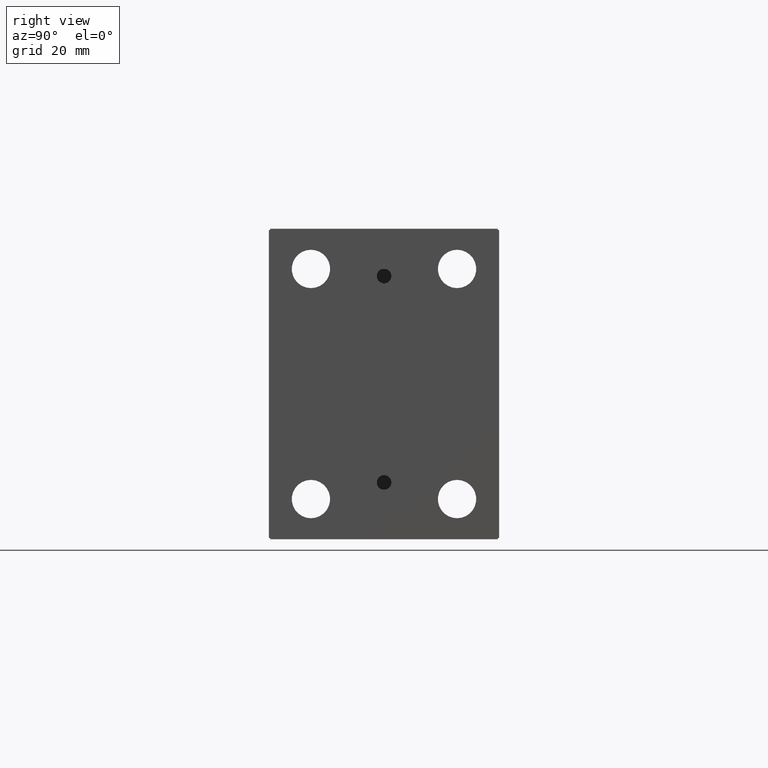
[diagram: clean part render]
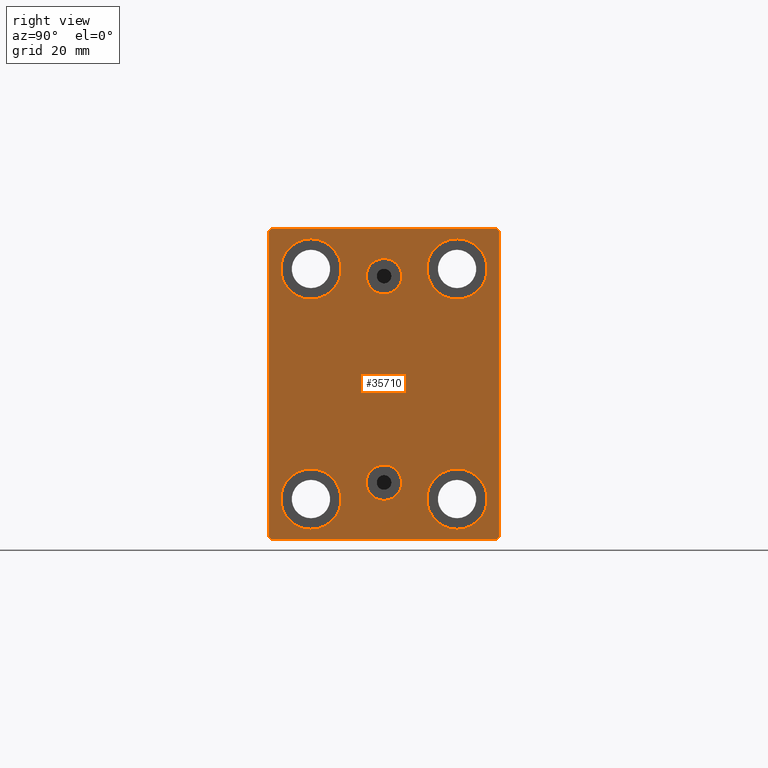
[diagram: same view with one face highlighted and labeled with its STEP entity id]
A machine part, right view. The second image highlights one B-rep face of the part: STEP entity #35710.
In plain terms, the highlighted planar face has unit normal (1, 0, 0).
Its self-contained STEP definition (entity closure, byte-faithful):
#89 = EDGE_LOOP ( 'NONE', ( #13865, #10913 ) ) ;
#205 = EDGE_CURVE ( 'NONE', #30146, #29244, #21344, .T. ) ;
#465 = ORIENTED_EDGE ( 'NONE', *, *, #20531, .F. ) ;
#588 = EDGE_CURVE ( 'NONE', #25107, #28019, #43537, .T. ) ;
#652 = VECTOR ( 'NONE', #19540, 1000.000000000000000 ) ;
#1775 = AXIS2_PLACEMENT_3D ( 'NONE', #41463, #13235, #45140 ) ;
#1930 = VERTEX_POINT ( 'NONE', #33197 ) ;
#2226 = DIRECTION ( 'NONE',  ( 0.000000000000000000, 0.000000000000000000, 1.000000000000000000 ) ) ;
#2328 = VERTEX_POINT ( 'NONE', #21862 ) ;
#3334 = CARTESIAN_POINT ( 'NONE',  ( 123.0000000000000000, 19.99999999999999645, -39.74999999999999289 ) ) ;
#3882 = DIRECTION ( 'NONE',  ( 0.000000000000000000, -0.7071067811865474617, -0.7071067811865474617 ) ) ;
#3933 = CARTESIAN_POINT ( 'NONE',  ( 123.0000000000000000, 20.00000000000000355, 31.50000000000000000 ) ) ;
#4055 = CARTESIAN_POINT ( 'NONE',  ( 123.0000000000000000, 0.000000000000000000, 0.000000000000000000 ) ) ;
#4302 = DIRECTION ( 'NONE',  ( 0.000000000000000000, 1.000000000000000000, 0.000000000000000000 ) ) ;
#4714 = AXIS2_PLACEMENT_3D ( 'NONE', #4055, #24952, #45162 ) ;
#4840 = ORIENTED_EDGE ( 'NONE', *, *, #9501, .T. ) ;
#4986 = AXIS2_PLACEMENT_3D ( 'NONE', #12368, #30493, #44731 ) ;
#5649 = VERTEX_POINT ( 'NONE', #24533 ) ;
#6112 = EDGE_CURVE ( 'NONE', #45364, #23648, #41803, .T. ) ;
#6165 = DIRECTION ( 'NONE',  ( -1.000000000000000000, -0.000000000000000000, -0.000000000000000000 ) ) ;
#6215 = CIRCLE ( 'NONE', #42130, 8.250000000000000000 ) ;
#6353 = VERTEX_POINT ( 'NONE', #37405 ) ;
#6516 = AXIS2_PLACEMENT_3D ( 'NONE', #16958, #6165, #30959 ) ;
#6595 = CARTESIAN_POINT ( 'NONE',  ( 123.0000000000000000, 19.99999999999999645, -31.49999999999999289 ) ) ;
#7075 = EDGE_CURVE ( 'NONE', #10674, #16423, #31305, .T. ) ;
#7143 = CIRCLE ( 'NONE', #29170, 8.249999999999992895 ) ;
#7336 = CIRCLE ( 'NONE', #10290, 8.249999999999992895 ) ;
#8166 = ORIENTED_EDGE ( 'NONE', *, *, #39740, .F. ) ;
#8636 = CIRCLE ( 'NONE', #40167, 8.249999999999992895 ) ;
#8640 = CARTESIAN_POINT ( 'NONE',  ( 123.0000000000000000, -31.50000000000000000, -42.50000000000000711 ) ) ;
#8839 = ORIENTED_EDGE ( 'NONE', *, *, #15064, .T. ) ;
#9134 = VERTEX_POINT ( 'NONE', #38042 ) ;
#9501 = EDGE_CURVE ( 'NONE', #2328, #5649, #7143, .T. ) ;
#9550 = DIRECTION ( 'NONE',  ( -1.000000000000000000, -0.000000000000000000, -0.000000000000000000 ) ) ;
#9697 = CARTESIAN_POINT ( 'NONE',  ( 123.0000000000000000, 20.00000000000000355, 31.50000000000000000 ) ) ;
#10157 = DIRECTION ( 'NONE',  ( -1.000000000000000000, -0.000000000000000000, -0.000000000000000000 ) ) ;
#10290 = AXIS2_PLACEMENT_3D ( 'NONE', #9697, #10157, #37712 ) ;
#10643 = VECTOR ( 'NONE', #19873, 1000.000000000000114 ) ;
#10674 = VERTEX_POINT ( 'NONE', #12682 ) ;
#10824 = CARTESIAN_POINT ( 'NONE',  ( 123.0000000000000000, 20.00000000000000355, 23.25000000000000355 ) ) ;
#10913 = ORIENTED_EDGE ( 'NONE', *, *, #14896, .F. ) ;
#11273 = DIRECTION ( 'NONE',  ( -1.000000000000000000, -0.000000000000000000, -0.000000000000000000 ) ) ;
#11286 = VECTOR ( 'NONE', #3882, 1000.000000000000114 ) ;
#11645 = LINE ( 'NONE', #8640, #44672 ) ;
#12368 = CARTESIAN_POINT ( 'NONE',  ( 123.0000000000000000, -3.571693674697836683E-15, 29.50000000000001066 ) ) ;
#12682 = CARTESIAN_POINT ( 'NONE',  ( 123.0000000000000000, -20.00000000000000355, -23.24999999999999289 ) ) ;
#12786 = CARTESIAN_POINT ( 'NONE',  ( 123.0000000000000000, -31.00000000000000000, 42.49999999999999289 ) ) ;
#13123 = DIRECTION ( 'NONE',  ( 0.000000000000000000, -1.632680918566406300E-16, 1.000000000000000000 ) ) ;
#13235 = DIRECTION ( 'NONE',  ( 1.000000000000000000, 0.000000000000000000, 0.000000000000000000 ) ) ;
#13346 = ORIENTED_EDGE ( 'NONE', *, *, #36653, .T. ) ;
#13738 = EDGE_LOOP ( 'NONE', ( #25732, #33025, #38927, #40318, #8839, #30584, #15057, #27808 ) ) ;
#13850 = CIRCLE ( 'NONE', #6516, 8.250000000000000000 ) ;
#13865 = ORIENTED_EDGE ( 'NONE', *, *, #37566, .F. ) ;
#14023 = CARTESIAN_POINT ( 'NONE',  ( 123.0000000000000000, 31.50000000000001421, -42.50000000000000711 ) ) ;
#14157 = FACE_BOUND ( 'NONE', #32499, .T. ) ;
#14483 = EDGE_CURVE ( 'NONE', #19395, #30146, #36987, .T. ) ;
#14896 = EDGE_CURVE ( 'NONE', #34017, #15071, #43092, .T. ) ;
#15046 = EDGE_LOOP ( 'NONE', ( #13346, #45279 ) ) ;
#15057 = ORIENTED_EDGE ( 'NONE', *, *, #6112, .T. ) ;
#15064 = EDGE_CURVE ( 'NONE', #34715, #35839, #11645, .T. ) ;
#15067 = CARTESIAN_POINT ( 'NONE',  ( 123.0000000000000000, 3.306546357697852550E-15, -26.99999999999998934 ) ) ;
#15071 = VERTEX_POINT ( 'NONE', #18085 ) ;
#15749 = DIRECTION ( 'NONE',  ( 1.000000000000000000, 0.000000000000000000, -0.000000000000000000 ) ) ;
#16423 = VERTEX_POINT ( 'NONE', #35715 ) ;
#16958 = CARTESIAN_POINT ( 'NONE',  ( 123.0000000000000000, 19.99999999999999645, -31.49999999999999289 ) ) ;
#17162 = FACE_BOUND ( 'NONE', #15046, .T. ) ;
#17579 = ORIENTED_EDGE ( 'NONE', *, *, #38695, .T. ) ;
#18085 = CARTESIAN_POINT ( 'NONE',  ( 123.0000000000000000, -3.571693674697836683E-15, 24.64000000000001123 ) ) ;
#18969 = CARTESIAN_POINT ( 'NONE',  ( 123.0000000000000000, 31.00000000000004263, -42.50000000000000711 ) ) ;
#19395 = VERTEX_POINT ( 'NONE', #26879 ) ;
#19540 = DIRECTION ( 'NONE',  ( 0.000000000000000000, -1.000000000000000000, -2.202823461557850341E-16 ) ) ;
#19614 = ORIENTED_EDGE ( 'NONE', *, *, #21815, .T. ) ;
#19873 = DIRECTION ( 'NONE',  ( -0.000000000000000000, 0.7071067811865573427, -0.7071067811865376918 ) ) ;
#20531 = EDGE_CURVE ( 'NONE', #9134, #1930, #41032, .T. ) ;
#21291 = FACE_OUTER_BOUND ( 'NONE', #13738, .T. ) ;
#21344 = LINE ( 'NONE', #31893, #11286 ) ;
#21504 = EDGE_CURVE ( 'NONE', #35839, #45364, #34134, .T. ) ;
#21815 = EDGE_CURVE ( 'NONE', #28019, #25107, #7336, .T. ) ;
#21862 = CARTESIAN_POINT ( 'NONE',  ( 123.0000000000000000, -19.99999999999999645, 39.74999999999999289 ) ) ;
#21907 = EDGE_CURVE ( 'NONE', #23648, #19395, #42730, .T. ) ;
#21997 = ORIENTED_EDGE ( 'NONE', *, *, #588, .T. ) ;
#22388 = VERTEX_POINT ( 'NONE', #3334 ) ;
#23267 = CARTESIAN_POINT ( 'NONE',  ( 123.0000000000000000, 31.50000000000000000, 42.00000000000002132 ) ) ;
#23469 = VECTOR ( 'NONE', #24394, 1000.000000000000000 ) ;
#23648 = VERTEX_POINT ( 'NONE', #23267 ) ;
#23758 = AXIS2_PLACEMENT_3D ( 'NONE', #3933, #11273, #42950 ) ;
#23800 = CARTESIAN_POINT ( 'NONE',  ( 123.0000000000000000, -20.00000000000000355, -31.49999999999999289 ) ) ;
#24024 = CARTESIAN_POINT ( 'NONE',  ( 123.0000000000000000, 31.50000000000001421, -42.00000000000002132 ) ) ;
#24050 = EDGE_LOOP ( 'NONE', ( #17579, #41604 ) ) ;
#24394 = DIRECTION ( 'NONE',  ( -0.000000000000000000, -0.7071067811865573427, 0.7071067811865378028 ) ) ;
#24533 = CARTESIAN_POINT ( 'NONE',  ( 123.0000000000000000, -19.99999999999999645, 23.25000000000000355 ) ) ;
#24952 = DIRECTION ( 'NONE',  ( 1.000000000000000000, 0.000000000000000000, 0.000000000000000000 ) ) ;
#25107 = VERTEX_POINT ( 'NONE', #37773 ) ;
#25521 = EDGE_LOOP ( 'NONE', ( #19614, #21997 ) ) ;
#25732 = ORIENTED_EDGE ( 'NONE', *, *, #14483, .T. ) ;
#26204 = VECTOR ( 'NONE', #13123, 1000.000000000000000 ) ;
#26332 = CARTESIAN_POINT ( 'NONE',  ( 123.0000000000000000, 36.75000000000045475, -36.74999999999943867 ) ) ;
#26879 = CARTESIAN_POINT ( 'NONE',  ( 123.0000000000000000, 31.00000000000000000, 42.50000000000000711 ) ) ;
#27808 = ORIENTED_EDGE ( 'NONE', *, *, #21907, .T. ) ;
#28019 = VERTEX_POINT ( 'NONE', #10824 ) ;
#28312 = DIRECTION ( 'NONE',  ( -1.000000000000000000, -0.000000000000000000, -0.000000000000000000 ) ) ;
#28837 = CARTESIAN_POINT ( 'NONE',  ( 123.0000000000000000, -31.50000000000000000, -42.00000000000003553 ) ) ;
#29066 = EDGE_CURVE ( 'NONE', #29244, #38782, #38112, .T. ) ;
#29170 = AXIS2_PLACEMENT_3D ( 'NONE', #40742, #37302, #44414 ) ;
#29244 = VERTEX_POINT ( 'NONE', #41995 ) ;
#30146 = VERTEX_POINT ( 'NONE', #12786 ) ;
#30442 = DIRECTION ( 'NONE',  ( 0.000000000000000000, 0.000000000000000000, 1.000000000000000000 ) ) ;
#30471 = DIRECTION ( 'NONE',  ( -1.000000000000000000, -0.000000000000000000, -0.000000000000000000 ) ) ;
#30493 = DIRECTION ( 'NONE',  ( 1.000000000000000000, 0.000000000000000000, 0.000000000000000000 ) ) ;
#30584 = ORIENTED_EDGE ( 'NONE', *, *, #21504, .T. ) ;
#30959 = DIRECTION ( 'NONE',  ( 0.000000000000000000, 0.000000000000000000, 1.000000000000000000 ) ) ;
#30965 = DIRECTION ( 'NONE',  ( 0.000000000000000000, 0.000000000000000000, 1.000000000000000000 ) ) ;
#31225 = DIRECTION ( 'NONE',  ( 0.000000000000000000, 0.000000000000000000, -1.000000000000000000 ) ) ;
#31305 = CIRCLE ( 'NONE', #37159, 8.250000000000000000 ) ;
#31500 = AXIS2_PLACEMENT_3D ( 'NONE', #41743, #38526, #30965 ) ;
#31893 = CARTESIAN_POINT ( 'NONE',  ( 123.0000000000000000, -36.75000000000000000, 36.75000000000000000 ) ) ;
#32180 = CARTESIAN_POINT ( 'NONE',  ( 123.0000000000000000, -19.99999999999999645, 31.50000000000000000 ) ) ;
#32499 = EDGE_LOOP ( 'NONE', ( #465, #8166 ) ) ;
#33025 = ORIENTED_EDGE ( 'NONE', *, *, #205, .T. ) ;
#33197 = CARTESIAN_POINT ( 'NONE',  ( 123.0000000000000000, 3.901724702083465828E-15, -22.13999999999999346 ) ) ;
#33418 = DIRECTION ( 'NONE',  ( 0.000000000000000000, 0.000000000000000000, 1.000000000000000000 ) ) ;
#33583 = ORIENTED_EDGE ( 'NONE', *, *, #40101, .T. ) ;
#34017 = VERTEX_POINT ( 'NONE', #42995 ) ;
#34134 = LINE ( 'NONE', #26332, #42529 ) ;
#34715 = VERTEX_POINT ( 'NONE', #41927 ) ;
#34811 = CIRCLE ( 'NONE', #1775, 4.859999999999999432 ) ;
#35068 = FACE_BOUND ( 'NONE', #41984, .T. ) ;
#35189 = CARTESIAN_POINT ( 'NONE',  ( 123.0000000000000000, 36.74999999999958078, 36.75000000000059686 ) ) ;
#35224 = DIRECTION ( 'NONE',  ( 0.000000000000000000, 0.000000000000000000, 1.000000000000000000 ) ) ;
#35433 = VECTOR ( 'NONE', #31225, 1000.000000000000000 ) ;
#35515 = PLANE ( 'NONE',  #4714 ) ;
#35633 = DIRECTION ( 'NONE',  ( -1.000000000000000000, -0.000000000000000000, -0.000000000000000000 ) ) ;
#35710 = ADVANCED_FACE ( 'NONE', ( #41485, #14157, #45382, #35068, #41934, #17162, #21291 ), #35515, .T. ) ;
#35715 = CARTESIAN_POINT ( 'NONE',  ( 123.0000000000000000, -20.00000000000000355, -39.74999999999999289 ) ) ;
#35839 = VERTEX_POINT ( 'NONE', #18969 ) ;
#36653 = EDGE_CURVE ( 'NONE', #16423, #10674, #6215, .T. ) ;
#36987 = LINE ( 'NONE', #44090, #652 ) ;
#37159 = AXIS2_PLACEMENT_3D ( 'NONE', #42543, #28312, #35224 ) ;
#37236 = CIRCLE ( 'NONE', #38719, 4.859999999999995879 ) ;
#37302 = DIRECTION ( 'NONE',  ( -1.000000000000000000, -0.000000000000000000, -0.000000000000000000 ) ) ;
#37405 = CARTESIAN_POINT ( 'NONE',  ( 123.0000000000000000, 19.99999999999999645, -23.24999999999999289 ) ) ;
#37427 = CARTESIAN_POINT ( 'NONE',  ( 123.0000000000000000, -31.50000000000000000, 42.49999999999999289 ) ) ;
#37566 = EDGE_CURVE ( 'NONE', #15071, #34017, #34811, .T. ) ;
#37712 = DIRECTION ( 'NONE',  ( 0.000000000000000000, 0.000000000000000000, 1.000000000000000000 ) ) ;
#37773 = CARTESIAN_POINT ( 'NONE',  ( 123.0000000000000000, 20.00000000000000355, 39.74999999999999289 ) ) ;
#38042 = CARTESIAN_POINT ( 'NONE',  ( 123.0000000000000000, 3.306546357697852550E-15, -31.85999999999998522 ) ) ;
#38112 = LINE ( 'NONE', #37427, #35433 ) ;
#38497 = CIRCLE ( 'NONE', #44352, 8.250000000000000000 ) ;
#38526 = DIRECTION ( 'NONE',  ( 1.000000000000000000, 0.000000000000000000, -0.000000000000000000 ) ) ;
#38695 = EDGE_CURVE ( 'NONE', #22388, #6353, #38497, .T. ) ;
#38719 = AXIS2_PLACEMENT_3D ( 'NONE', #15067, #15749, #33418 ) ;
#38782 = VERTEX_POINT ( 'NONE', #28837 ) ;
#38909 = EDGE_CURVE ( 'NONE', #38782, #34715, #44418, .T. ) ;
#38927 = ORIENTED_EDGE ( 'NONE', *, *, #29066, .T. ) ;
#39740 = EDGE_CURVE ( 'NONE', #1930, #9134, #37236, .T. ) ;
#40101 = EDGE_CURVE ( 'NONE', #5649, #2328, #8636, .T. ) ;
#40167 = AXIS2_PLACEMENT_3D ( 'NONE', #32180, #35633, #41831 ) ;
#40318 = ORIENTED_EDGE ( 'NONE', *, *, #38909, .T. ) ;
#40742 = CARTESIAN_POINT ( 'NONE',  ( 123.0000000000000000, -19.99999999999999645, 31.50000000000000000 ) ) ;
#41032 = CIRCLE ( 'NONE', #31500, 4.859999999999995879 ) ;
#41203 = CARTESIAN_POINT ( 'NONE',  ( 123.0000000000000000, -36.74999999999958078, -36.75000000000060396 ) ) ;
#41463 = CARTESIAN_POINT ( 'NONE',  ( 123.0000000000000000, -3.571693674697836683E-15, 29.50000000000001066 ) ) ;
#41485 = FACE_BOUND ( 'NONE', #89, .T. ) ;
#41604 = ORIENTED_EDGE ( 'NONE', *, *, #41953, .T. ) ;
#41743 = CARTESIAN_POINT ( 'NONE',  ( 123.0000000000000000, 3.306546357697852550E-15, -26.99999999999998934 ) ) ;
#41803 = LINE ( 'NONE', #14023, #26204 ) ;
#41831 = DIRECTION ( 'NONE',  ( 0.000000000000000000, 0.000000000000000000, 1.000000000000000000 ) ) ;
#41927 = CARTESIAN_POINT ( 'NONE',  ( 123.0000000000000000, -31.00000000000001421, -42.50000000000000711 ) ) ;
#41934 = FACE_BOUND ( 'NONE', #25521, .T. ) ;
#41953 = EDGE_CURVE ( 'NONE', #6353, #22388, #13850, .T. ) ;
#41984 = EDGE_LOOP ( 'NONE', ( #33583, #4840 ) ) ;
#41995 = CARTESIAN_POINT ( 'NONE',  ( 123.0000000000000000, -31.50000000000000000, 41.99999999999999289 ) ) ;
#42130 = AXIS2_PLACEMENT_3D ( 'NONE', #23800, #9550, #30442 ) ;
#42529 = VECTOR ( 'NONE', #43999, 1000.000000000000114 ) ;
#42543 = CARTESIAN_POINT ( 'NONE',  ( 123.0000000000000000, -20.00000000000000355, -31.49999999999999289 ) ) ;
#42730 = LINE ( 'NONE', #35189, #23469 ) ;
#42950 = DIRECTION ( 'NONE',  ( 0.000000000000000000, 0.000000000000000000, 1.000000000000000000 ) ) ;
#42995 = CARTESIAN_POINT ( 'NONE',  ( 123.0000000000000000, -2.976515330312223011E-15, 34.36000000000000654 ) ) ;
#43092 = CIRCLE ( 'NONE', #4986, 4.859999999999999432 ) ;
#43537 = CIRCLE ( 'NONE', #23758, 8.249999999999992895 ) ;
#43999 = DIRECTION ( 'NONE',  ( -0.000000000000000000, 0.7071067811865376918, 0.7071067811865573427 ) ) ;
#44090 = CARTESIAN_POINT ( 'NONE',  ( 123.0000000000000000, 31.50000000000000000, 42.50000000000000711 ) ) ;
#44352 = AXIS2_PLACEMENT_3D ( 'NONE', #6595, #30471, #2226 ) ;
#44414 = DIRECTION ( 'NONE',  ( 0.000000000000000000, 0.000000000000000000, 1.000000000000000000 ) ) ;
#44418 = LINE ( 'NONE', #41203, #10643 ) ;
#44672 = VECTOR ( 'NONE', #4302, 1000.000000000000000 ) ;
#44731 = DIRECTION ( 'NONE',  ( 0.000000000000000000, 0.000000000000000000, -1.000000000000000000 ) ) ;
#45140 = DIRECTION ( 'NONE',  ( 0.000000000000000000, 0.000000000000000000, -1.000000000000000000 ) ) ;
#45162 = DIRECTION ( 'NONE',  ( 0.000000000000000000, 0.000000000000000000, -1.000000000000000000 ) ) ;
#45279 = ORIENTED_EDGE ( 'NONE', *, *, #7075, .T. ) ;
#45364 = VERTEX_POINT ( 'NONE', #24024 ) ;
#45382 = FACE_BOUND ( 'NONE', #24050, .T. ) ;